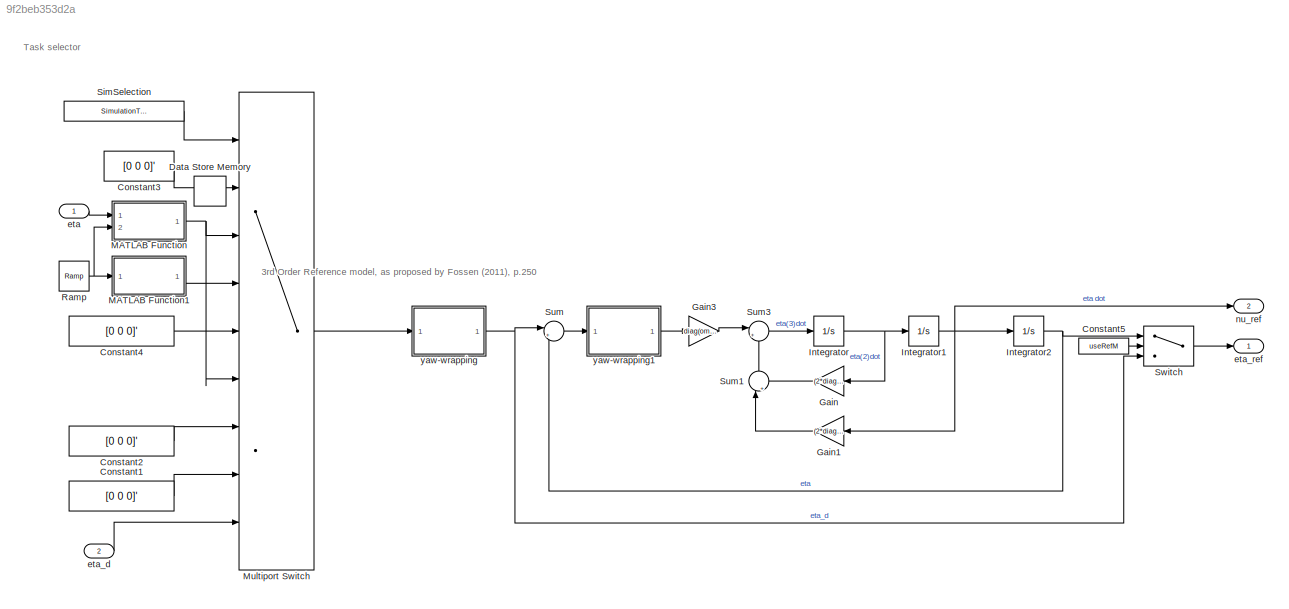
MODEL slx_9f2beb353d2a
KIND model
CONFIG AbsTol = auto
CONFIG EnableMultiTasking = off
CONFIG FixedStep = 0.1
CONFIG MaxStep = auto
CONFIG MinStep = auto
CONFIG RelTol = 1e-3
CONFIG SampleTimeConstraint = Unconstrained
CONFIG Solver = FixedStepAuto
CONFIG SolverName = FixedStepAuto
CONFIG StartTime = 0.0
CONFIG StopTime = 10.0
BLOCK [Constant] Constant1
  Value = [0 0 0]'
BLOCK [Constant] Constant2
  Value = [0 0 0]'
BLOCK [Constant] Constant3
  Value = [0 0 0]'
BLOCK [Constant] Constant4
  Value = [0 0 0]'
BLOCK [Constant] Constant5
  Value = useRefM
BLOCK [DataStoreMemory] Data Store Memory
  DataStoreName = i
  InitialValue = 1
  OutDataTypeStr = int8
  ShowAdditionalParam = off
  SignalType = real
BLOCK [Gain] Gain
  Gain = (2*diag(delta_refm)+eye(3)) * diag(omega_refm)
  Multiplication = Matrix(K*u)
  OutDataTypeStr = Inherit: Inherit via internal rule
  ParamDataTypeStr = Inherit: Inherit via internal rule
  SaturateOnIntegerOverflow = off
BLOCK [Gain] Gain1
  Gain = (2*diag(delta_refm)+eye(3)) * diag(omega_refm)^2
  Multiplication = Matrix(K*u)
  OutDataTypeStr = Inherit: Inherit via internal rule
  ParamDataTypeStr = Inherit: Inherit via internal rule
  SaturateOnIntegerOverflow = off
BLOCK [Gain] Gain3
  Gain = diag(omega_refm)^3
  Multiplication = Matrix(K*u)
  OutDataTypeStr = Inherit: Inherit via internal rule
  ParamDataTypeStr = Inherit: Inherit via internal rule
  SaturateOnIntegerOverflow = off
BLOCK [Integrator] Integrator
  LimitOutput = on
  LowerSaturationLimit = -nu_dot_sat
  Ports = [1, 1]
  UpperSaturationLimit = nu_dot_sat
BLOCK [Integrator] Integrator1
  InitialCondition = [nu0(1:2)', nu0(6)]'
  LimitOutput = on
  LowerSaturationLimit = -nu_sat
  Ports = [1, 1]
  UpperSaturationLimit = nu_sat
BLOCK [Integrator] Integrator2
  InitialCondition = [eta0(1:2)', eta0(6)]'
  Ports = [1, 1]
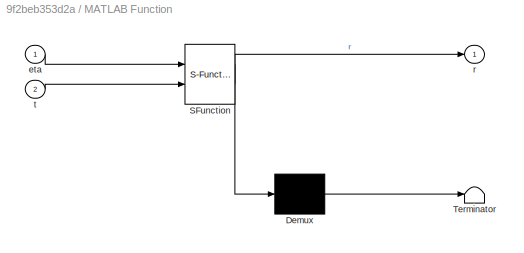
BLOCK [SubSystem] MATLAB Function
  ErrorFcn = Stateflow.Translate.translate
  PermitHierarchicalResolution = ExplicitOnly
  Ports = [2, 1]
  RequestExecContextInheritance = off
  SFBlockType = MATLAB Function
  TreatAsAtomicUnit = on
BLOCK [Demux] MATLAB Function/ Demux 
  Outputs = 1
  Ports = [1, 1]
BLOCK [S-Function] MATLAB Function/ SFunction 
  EnableBusSupport = on
  FunctionName = sf_sfun
  PortCounts = [2 2]
  Ports = [2, 2]
  SFcnIsStateOwnerBlock = off
  SFunctionDeploymentMode = off
  Tag = Stateflow S-Function reference_model 5
BLOCK [Terminator] MATLAB Function/ Terminator 
BLOCK [Inport] MATLAB Function/eta
  IconDisplay = Port number
BLOCK [Outport] MATLAB Function/r
  IconDisplay = Port number
BLOCK [Inport] MATLAB Function/t
  IconDisplay = Port number
  Port = 2
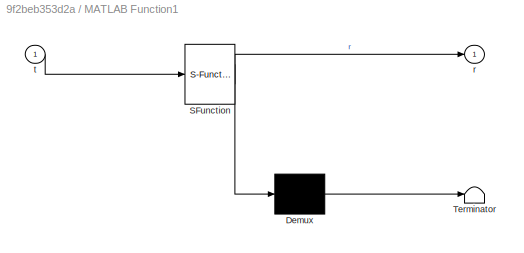
BLOCK [SubSystem] MATLAB Function1
  ErrorFcn = Stateflow.Translate.translate
  PermitHierarchicalResolution = ExplicitOnly
  Ports = [1, 1]
  RequestExecContextInheritance = off
  SFBlockType = MATLAB Function
  TreatAsAtomicUnit = on
BLOCK [Demux] MATLAB Function1/ Demux 
  Outputs = 1
  Ports = [1, 1]
BLOCK [S-Function] MATLAB Function1/ SFunction 
  EnableBusSupport = on
  FunctionName = sf_sfun
  PortCounts = [1 2]
  Ports = [1, 2]
  SFcnIsStateOwnerBlock = off
  SFunctionDeploymentMode = off
  Tag = Stateflow S-Function reference_model 3
BLOCK [Terminator] MATLAB Function1/ Terminator 
BLOCK [Outport] MATLAB Function1/r
  IconDisplay = Port number
BLOCK [Inport] MATLAB Function1/t
  IconDisplay = Port number
BLOCK [MultiPortSwitch] Multiport Switch
  DiagnosticForDefault = None
  InputSameDT = off
  Inputs = 8
  Ports = [9, 1]
  SaturateOnIntegerOverflow = off
BLOCK [Reference] Ramp  REF=simulink/Sources/Ramp
  Ports = [0, 1]
  SourceBlock = simulink/Sources/Ramp
  SourceProductBaseCode = SL
  SourceProductName = Simulink
  SourceType = Ramp
BLOCK [Constant] SimSelection
  Value = SimulationToRun
BLOCK [Sum] Sum
  IconShape = round
  InputSameDT = off
  Inputs = |+-
  OutDataTypeStr = Inherit: Inherit via internal rule
  Ports = [2, 1]
  SaturateOnIntegerOverflow = off
BLOCK [Sum] Sum1
  IconShape = round
  InputSameDT = off
  Inputs = |++
  OutDataTypeStr = Inherit: Inherit via internal rule
  Ports = [2, 1]
  SaturateOnIntegerOverflow = off
BLOCK [Sum] Sum3
  IconShape = round
  InputSameDT = off
  Inputs = |+-
  OutDataTypeStr = Inherit: Inherit via internal rule
  Ports = [2, 1]
  SaturateOnIntegerOverflow = off
BLOCK [Switch] Switch
  Criteria = u2 ~= 0
  InputSameDT = off
  SaturateOnIntegerOverflow = off
BLOCK [Inport] eta
  IconDisplay = Port number
  PortDimensions = 3
BLOCK [Inport] eta_d
  IconDisplay = Port number
  Port = 2
  PortDimensions = 3
BLOCK [Outport] eta_ref
  IconDisplay = Port number
  PortDimensions = 3
BLOCK [Outport] nu_ref
  IconDisplay = Port number
  Port = 2
  PortDimensions = 3
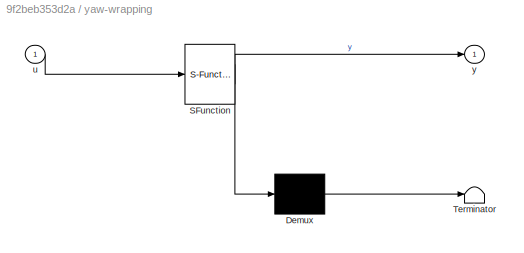
BLOCK [SubSystem] yaw-wrapping
  ErrorFcn = Stateflow.Translate.translate
  PermitHierarchicalResolution = ExplicitOnly
  Ports = [1, 1]
  RequestExecContextInheritance = off
  SFBlockType = MATLAB Function
  TreatAsAtomicUnit = on
BLOCK [Demux] yaw-wrapping/ Demux 
  Outputs = 1
  Ports = [1, 1]
BLOCK [S-Function] yaw-wrapping/ SFunction 
  EnableBusSupport = on
  FunctionName = sf_sfun
  PortCounts = [1 2]
  Ports = [1, 2]
  SFcnIsStateOwnerBlock = off
  SFunctionDeploymentMode = off
  Tag = Stateflow S-Function reference_model 1
BLOCK [Terminator] yaw-wrapping/ Terminator 
BLOCK [Inport] yaw-wrapping/u
  IconDisplay = Port number
BLOCK [Outport] yaw-wrapping/y
  IconDisplay = Port number
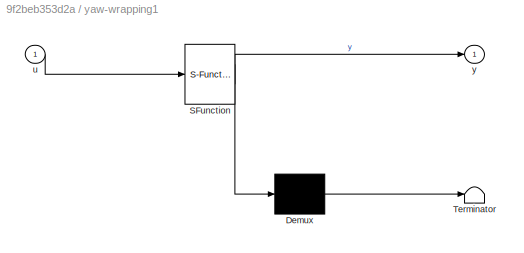
BLOCK [SubSystem] yaw-wrapping1
  ErrorFcn = Stateflow.Translate.translate
  PermitHierarchicalResolution = ExplicitOnly
  Ports = [1, 1]
  RequestExecContextInheritance = off
  SFBlockType = MATLAB Function
  TreatAsAtomicUnit = on
BLOCK [Demux] yaw-wrapping1/ Demux 
  Outputs = 1
  Ports = [1, 1]
BLOCK [S-Function] yaw-wrapping1/ SFunction 
  EnableBusSupport = on
  FunctionName = sf_sfun
  PortCounts = [1 2]
  Ports = [1, 2]
  SFcnIsStateOwnerBlock = off
  SFunctionDeploymentMode = off
  Tag = Stateflow S-Function reference_model 2
BLOCK [Terminator] yaw-wrapping1/ Terminator 
BLOCK [Inport] yaw-wrapping1/u
  IconDisplay = Port number
BLOCK [Outport] yaw-wrapping1/y
  IconDisplay = Port number
ANNOTATION (root): 3rd Order Reference model, as proposed by Fossen (2011), p.250
ANNOTATION (root): Task selector
LINE Constant1:1 -> Multiport Switch:8
LINE Constant2:1 -> Multiport Switch:7
LINE Constant3:1 -> Multiport Switch:2
LINE Constant4:1 -> Multiport Switch:5
LINE Constant5:1 -> Switch:2
LINE Gain1:1 -> Sum1:1
LINE Gain3:1 -> Sum3:1
LINE Gain:1 -> Sum1:2
NET Integrator1:1 -> Gain1:1, Integrator2:1, nu_ref:1
NET Integrator2:1 -> Sum:2, Switch:1
NET Integrator:1 -> Gain:1, Integrator1:1
LINE MATLAB Function1:1 -> Multiport Switch:4
NET MATLAB Function:1 -> Multiport Switch:3, Multiport Switch:6
LINE Multiport Switch:1 -> yaw-wrapping:1
NET Ramp:1 -> MATLAB Function1:1, MATLAB Function:2
LINE SimSelection:1 -> Multiport Switch:1
LINE Sum1:1 -> Sum3:2
LINE Sum3:1 -> Integrator:1
LINE Sum:1 -> yaw-wrapping1:1
LINE Switch:1 -> eta_ref:1
LINE eta:1 -> MATLAB Function:1
LINE eta_d:1 -> Multiport Switch:9
LINE yaw-wrapping1:1 -> Gain3:1
NET yaw-wrapping:1 -> Sum:1, Switch:3
note: NET lines group one-source signal fan-out (src -> all destinations, sorted); 1:1 wires keep LINE
CHART yaw-wrapping states=1 transitions=1
  STATE_LABEL 'eML_blk_kernel()'
  STATE_LABEL 'SCRIPT:\nfunction y = fcn(u)\n    u(3) = mod(u(3)+pi, 2*pi) - pi; \ny = u;\n'
CHART yaw-wrapping1 states=1 transitions=1
  STATE_LABEL 'eML_blk_kernel()'
  STATE_LABEL 'SCRIPT:\nfunction y = fcn(u)\n    u(3) = mod(u(3)+pi, 2*pi) - pi; \ny = u;\n'
CHART MATLAB Function1 states=1 transitions=1
  STATE_LABEL 'eML_blk_kernel()'
  STATE_LABEL "SCRIPT:\nfunction r = fcn(t)\n\nri = [ 0   0     0;\n      50   0     0;\n      50 -50     0;\n      50 -50 -pi/4;\n       0 -50 -pi/4;\n       0   0     0 ]';\n\nif t < 100\n    r = ri(:,1);\nelseif t < 400\n    r = ri(:,2);\nelseif t < 800\n    r = ri(:,3);\nelseif t < 1200\n    r = ri(:,4);\nelseif t < 1600\n    r = ri(:,5);\nelse\n    r = ri(:,6);\nend\n\n    \n   \n"
CHART MATLAB Function states=1 transitions=1
  STATE_LABEL 'eML_blk_kernel()'
  STATE_LABEL "SCRIPT:\nfunction r = fcn(eta, t)\n\nglobal i;\nri = [ 0   0     0;\n      50   0     0;\n      50 -50     0;\n      50 -50 -pi/4;\n       0 -50 -pi/4;\n       0   0     0 ]';\n\n   \nif t < 50\n    i = int8(1);\nelseif i ~= 6\n    if (norm(eta(1:2)-ri(1:2,i)) < 0.2) && (abs(eta(3)-ri(3,i)) < 0.01)\n        i = i + 1;\n    end\nend\n   \nr = ri(:,i);\n"
